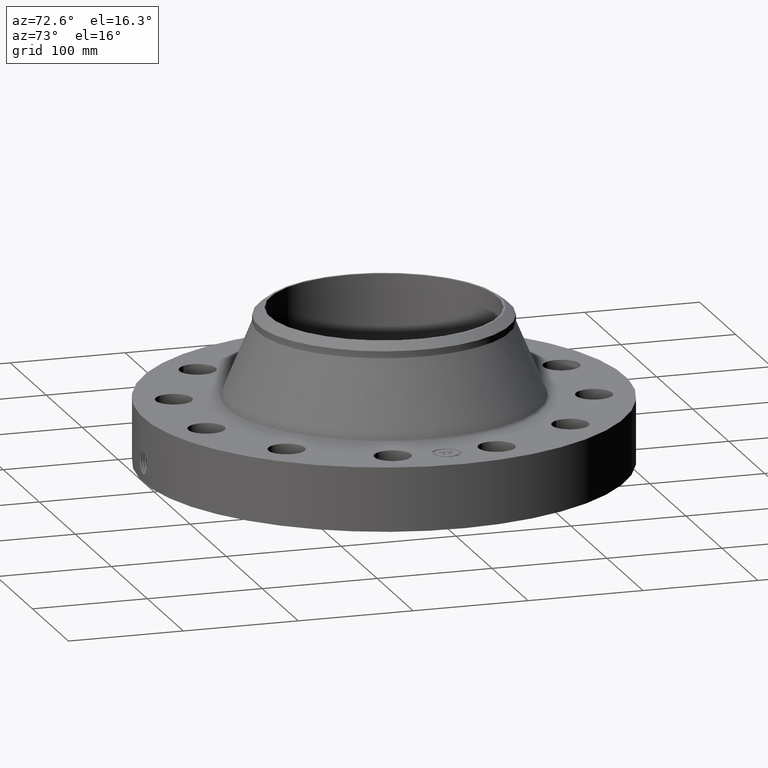
[diagram: clean part render]
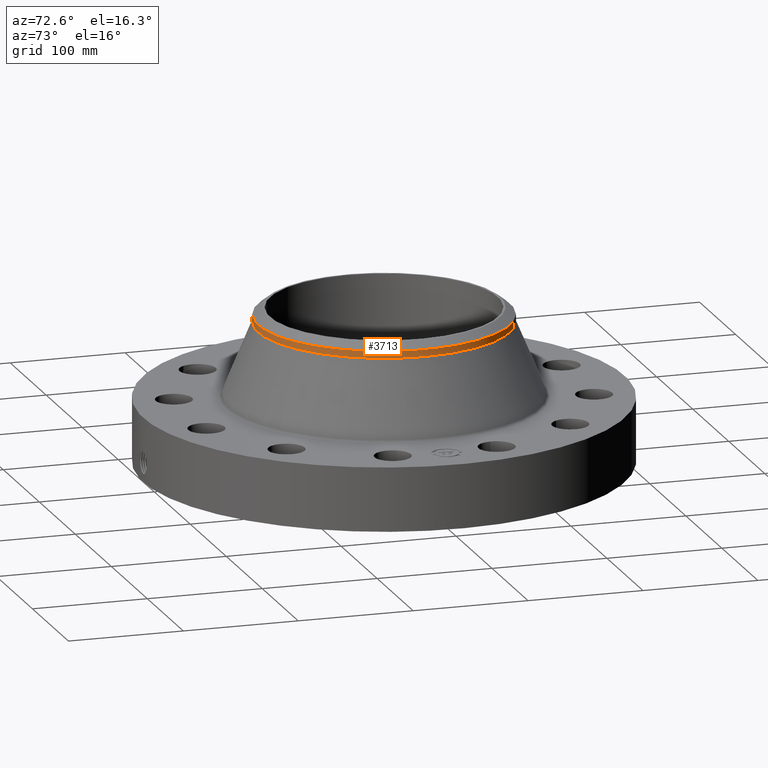
[diagram: same view with one face highlighted and labeled with its STEP entity id]
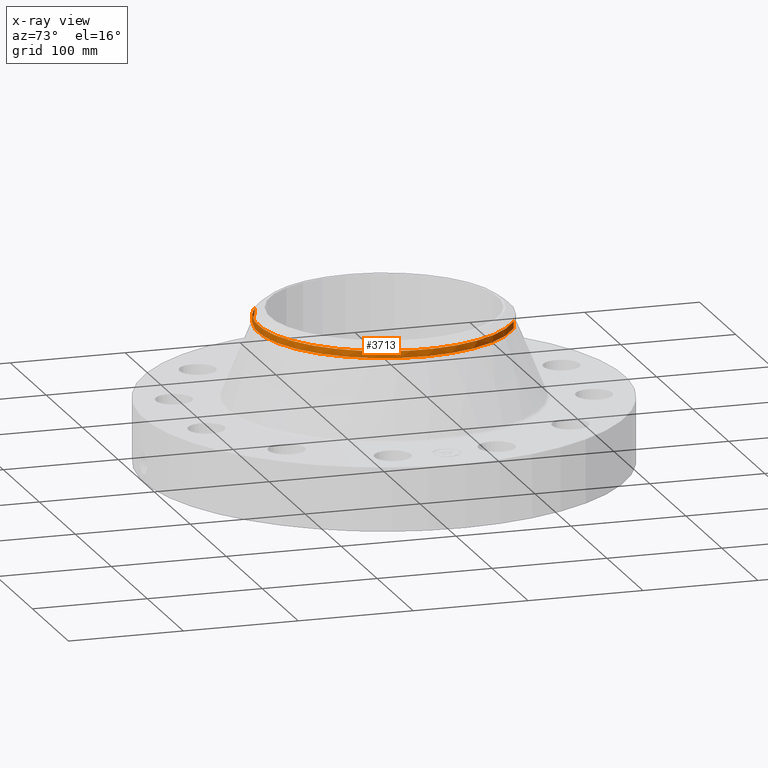
[diagram: x-ray of the same camera — body ghosted, the highlighted face saturated]
A machine part, auxiliary view. The second image highlights one B-rep face of the part: STEP entity #3713.
The next image is the same camera in x-ray: the body ghosted, the highlighted face saturated — about 0% of this face is hidden behind the body in this view.
In plain terms, the highlighted cylindrical surface (partial cylindrical patch) has radius 109.601 mm, axis along (0, 0, -1).
Its self-contained STEP definition (entity closure, byte-faithful):
#2898=AXIS2_PLACEMENT_3D('Circle Axis2P3D',#2896,#2897,$) ;
#3354=AXIS2_PLACEMENT_3D('Circle Axis2P3D',#3352,#3353,$) ;
#3367=AXIS2_PLACEMENT_3D('Circle Axis2P3D',#3365,#3366,$) ;
#3694=AXIS2_PLACEMENT_3D('Cylinder Axis2P3D',#3691,#3692,#3693) ;
#2893=CARTESIAN_POINT('Vertex',(2.06872119909,3.78676875457,5.01074590086)) ;
#2896=CARTESIAN_POINT('Axis2P3D Location',(0.,0.,5.01074590086)) ;
#2900=CARTESIAN_POINT('Vertex',(-2.06872119909,-3.78676875457,5.01074590086)) ;
#3335=CARTESIAN_POINT('Vertex',(2.06872119909,-3.78676875457,5.2469663733)) ;
#3349=CARTESIAN_POINT('Vertex',(-2.06872119909,-3.78676875457,5.2469663733)) ;
#3352=CARTESIAN_POINT('Axis2P3D Location',(0.,0.,5.2469663733)) ;
#3365=CARTESIAN_POINT('Axis2P3D Location',(0.,0.,5.2469663733)) ;
#3369=CARTESIAN_POINT('Vertex',(2.06872119909,3.78676875457,5.2469663733)) ;
#3691=CARTESIAN_POINT('Axis2P3D Location',(0.,0.,2.87500000001)) ;
#3696=CARTESIAN_POINT('Line Origine',(-2.06872119909,-3.78676875457,5.12885613708)) ;
#3701=CARTESIAN_POINT('Line Origine',(2.06872119909,3.78676875457,5.12885613708)) ;
#2897=DIRECTION('Axis2P3D Direction',(0.,0.,-0.0393700787402)) ;
#3353=DIRECTION('Axis2P3D Direction',(0.,0.,-0.0393700787402)) ;
#3366=DIRECTION('Axis2P3D Direction',(0.,0.,-0.0393700787402)) ;
#3692=DIRECTION('Axis2P3D Direction',(0.,0.,-0.0393700787402)) ;
#3693=DIRECTION('Axis2P3D XDirection',(-0.0188750212049,-0.0345504945626,0.)) ;
#3697=DIRECTION('Vector Direction',(0.,0.,-0.0393700787402)) ;
#3702=DIRECTION('Vector Direction',(0.,0.,-0.0393700787402)) ;
#3698=VECTOR('Line Direction',#3697,0.0393700787402) ;
#3703=VECTOR('Line Direction',#3702,0.0393700787402) ;
#3707=ORIENTED_EDGE('',*,*,#3700,.F.) ;
#3708=ORIENTED_EDGE('',*,*,#2902,.F.) ;
#3709=ORIENTED_EDGE('',*,*,#3705,.T.) ;
#3710=ORIENTED_EDGE('',*,*,#3371,.F.) ;
#3711=ORIENTED_EDGE('',*,*,#3356,.T.) ;
#3713=ADVANCED_FACE('PartBody',(#3712),#3695,.T.) ;
#2899=CIRCLE('generated circle',#2898,4.31500000002) ;
#3355=CIRCLE('generated circle',#3354,4.31500000002) ;
#3368=CIRCLE('generated circle',#3367,4.31500000002) ;
#3695=CYLINDRICAL_SURFACE('generated cylinder',#3694,4.31500000002) ;
#2902=EDGE_CURVE('',#2894,#2901,#2899,.T.) ;
#3356=EDGE_CURVE('',#3336,#3350,#3355,.T.) ;
#3371=EDGE_CURVE('',#3336,#3370,#3368,.F.) ;
#3700=EDGE_CURVE('',#2901,#3350,#3699,.F.) ;
#3705=EDGE_CURVE('',#2894,#3370,#3704,.F.) ;
#3706=EDGE_LOOP('',(#3707,#3708,#3709,#3710,#3711)) ;
#3712=FACE_OUTER_BOUND('',#3706,.T.) ;
#3699=LINE('Line',#3696,#3698) ;
#3704=LINE('Line',#3701,#3703) ;
#2894=VERTEX_POINT('',#2893) ;
#2901=VERTEX_POINT('',#2900) ;
#3336=VERTEX_POINT('',#3335) ;
#3350=VERTEX_POINT('',#3349) ;
#3370=VERTEX_POINT('',#3369) ;